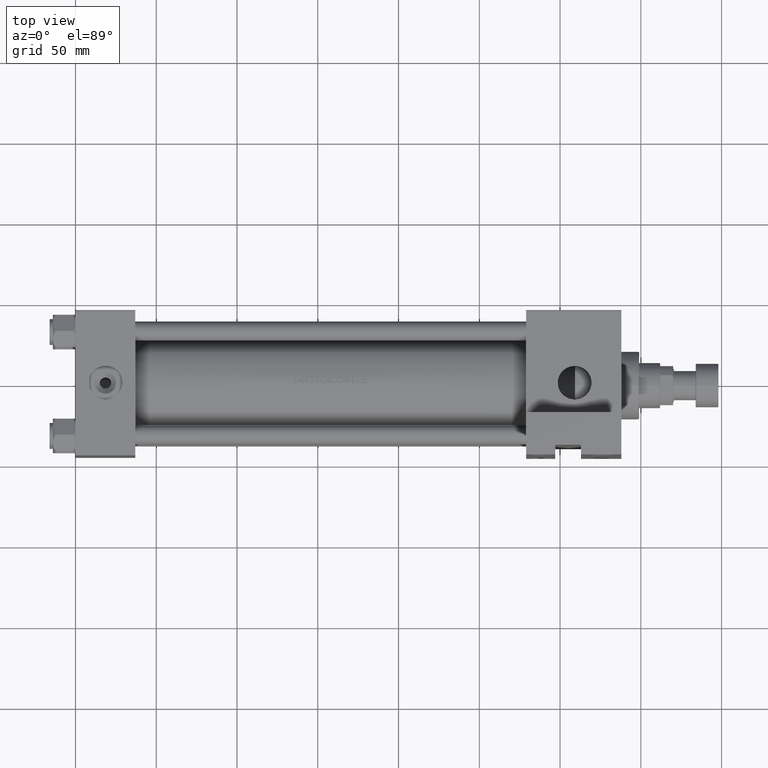
[diagram: clean part render]
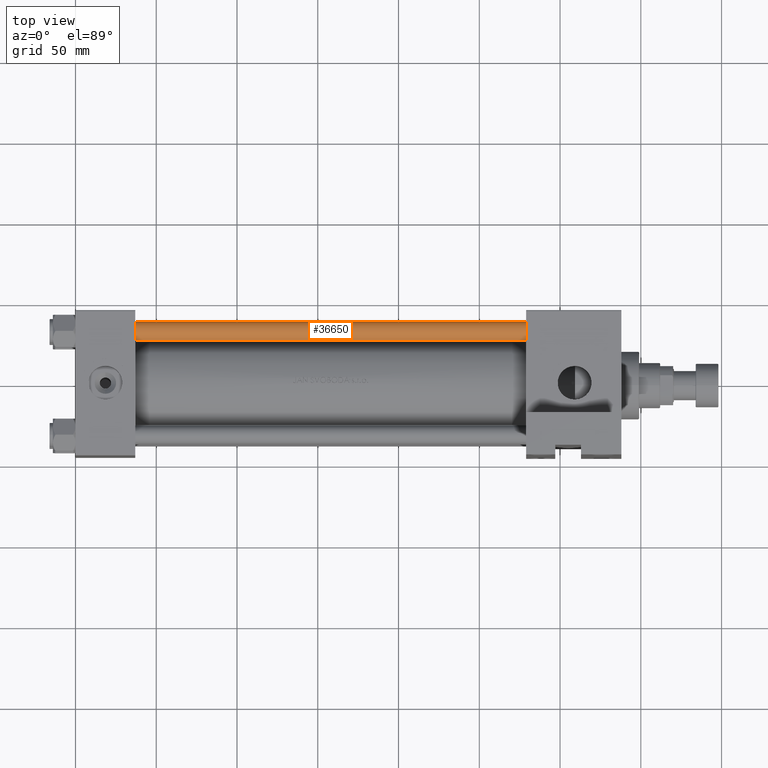
[diagram: same view with one face highlighted and labeled with its STEP entity id]
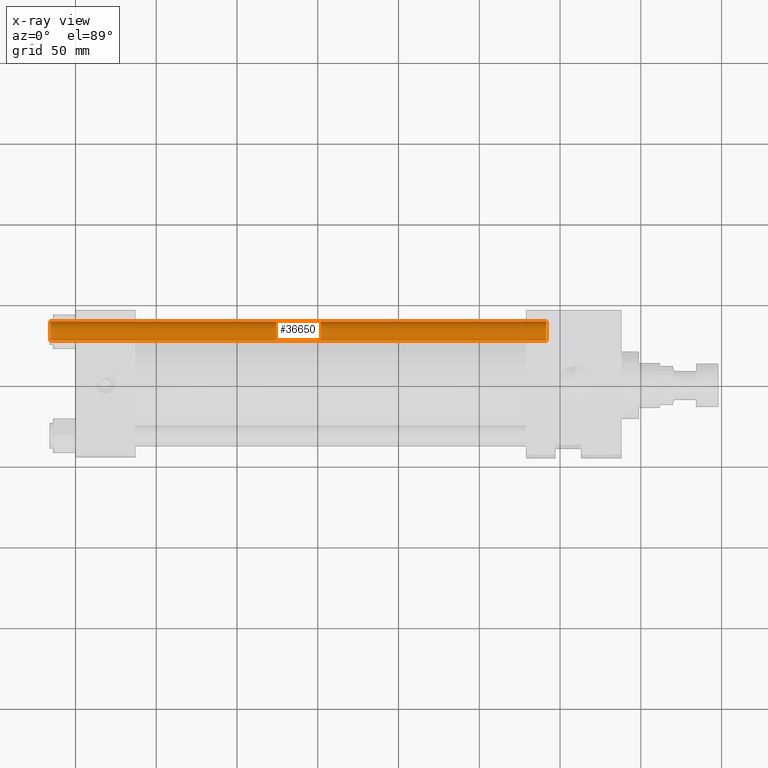
[diagram: x-ray of the same camera — body ghosted, the highlighted face saturated]
A machine part, top view. The second image highlights one B-rep face of the part: STEP entity #36650.
The next image is the same camera in x-ray: the body ghosted, the highlighted face saturated — about 0% of this face is hidden behind the body in this view.
In plain terms, the highlighted cylindrical surface (edge-blend (fillet) strip) has radius 6 mm, axis along (1, -0, 0).
Its self-contained STEP definition (entity closure, byte-faithful):
#429 = ORIENTED_EDGE ( 'NONE', *, *, #10012, .T. ) ;
#449 = CARTESIAN_POINT ( 'NONE',  ( 0.000000000000000000, 0.000000000000000000, 308.0000000000000000 ) ) ;
#1341 = EDGE_CURVE ( 'NONE', #7013, #6409, #8137, .T. ) ;
#1622 = AXIS2_PLACEMENT_3D ( 'NONE', #15727, #11913, #27161 ) ;
#4006 = AXIS2_PLACEMENT_3D ( 'NONE', #40482, #40985, #5683 ) ;
#4343 = CARTESIAN_POINT ( 'NONE',  ( 6.000000000000000888, 7.347880794884120722E-16, 308.0000000000000000 ) ) ;
#5683 = DIRECTION ( 'NONE',  ( 1.000000000000000000, 0.000000000000000000, 0.000000000000000000 ) ) ;
#6409 = VERTEX_POINT ( 'NONE', #25276 ) ;
#7013 = VERTEX_POINT ( 'NONE', #49049 ) ;
#7539 = AXIS2_PLACEMENT_3D ( 'NONE', #449, #11867, #31433 ) ;
#8137 = LINE ( 'NONE', #4343, #17244 ) ;
#10012 = EDGE_CURVE ( 'NONE', #50183, #28275, #26250, .T. ) ;
#11867 = DIRECTION ( 'NONE',  ( -0.000000000000000000, -0.000000000000000000, -1.000000000000000000 ) ) ;
#11913 = DIRECTION ( 'NONE',  ( -0.000000000000000000, -0.000000000000000000, 1.000000000000000000 ) ) ;
#11954 = DIRECTION ( 'NONE',  ( -0.000000000000000000, -0.000000000000000000, -1.000000000000000000 ) ) ;
#15672 = FACE_OUTER_BOUND ( 'NONE', #46973, .T. ) ;
#15727 = CARTESIAN_POINT ( 'NONE',  ( 0.000000000000000000, 0.000000000000000000, 0.5000000000000559552 ) ) ;
#17105 = EDGE_CURVE ( 'NONE', #7013, #50183, #24166, .T. ) ;
#17244 = VECTOR ( 'NONE', #11954, 1000.000000000000000 ) ;
#18764 = CARTESIAN_POINT ( 'NONE',  ( -6.000000000000000888, 0.000000000000000000, 0.5000000000000559552 ) ) ;
#22936 = DIRECTION ( 'NONE',  ( -0.000000000000000000, -0.000000000000000000, -1.000000000000000000 ) ) ;
#24166 = CIRCLE ( 'NONE', #4006, 6.000000000000000888 ) ;
#25276 = CARTESIAN_POINT ( 'NONE',  ( 6.000000000000000888, 7.347880794884120722E-16, 0.5000000000000559552 ) ) ;
#26250 = LINE ( 'NONE', #45787, #31203 ) ;
#26891 = ORIENTED_EDGE ( 'NONE', *, *, #28464, .T. ) ;
#27161 = DIRECTION ( 'NONE',  ( 1.000000000000000000, 0.000000000000000000, 0.000000000000000000 ) ) ;
#28275 = VERTEX_POINT ( 'NONE', #18764 ) ;
#28464 = EDGE_CURVE ( 'NONE', #28275, #6409, #49434, .T. ) ;
#29082 = ORIENTED_EDGE ( 'NONE', *, *, #1341, .F. ) ;
#31180 = CYLINDRICAL_SURFACE ( 'NONE', #7539, 6.000000000000000888 ) ;
#31203 = VECTOR ( 'NONE', #22936, 1000.000000000000000 ) ;
#31433 = DIRECTION ( 'NONE',  ( -1.000000000000000000, 0.000000000000000000, 0.000000000000000000 ) ) ;
#31468 = CARTESIAN_POINT ( 'NONE',  ( -6.000000000000000888, 0.000000000000000000, 307.4999999999999432 ) ) ;
#36650 = ADVANCED_FACE ( 'NONE', ( #15672 ), #31180, .T. ) ;
#40482 = CARTESIAN_POINT ( 'NONE',  ( 0.000000000000000000, 0.000000000000000000, 307.4999999999999432 ) ) ;
#40985 = DIRECTION ( 'NONE',  ( 0.000000000000000000, 0.000000000000000000, -1.000000000000000000 ) ) ;
#44941 = ORIENTED_EDGE ( 'NONE', *, *, #17105, .T. ) ;
#45787 = CARTESIAN_POINT ( 'NONE',  ( -6.000000000000000888, 0.000000000000000000, 308.0000000000000000 ) ) ;
#46973 = EDGE_LOOP ( 'NONE', ( #29082, #44941, #429, #26891 ) ) ;
#49049 = CARTESIAN_POINT ( 'NONE',  ( 6.000000000000000888, 7.347880794884120722E-16, 307.4999999999999432 ) ) ;
#49434 = CIRCLE ( 'NONE', #1622, 6.000000000000000888 ) ;
#50183 = VERTEX_POINT ( 'NONE', #31468 ) ;